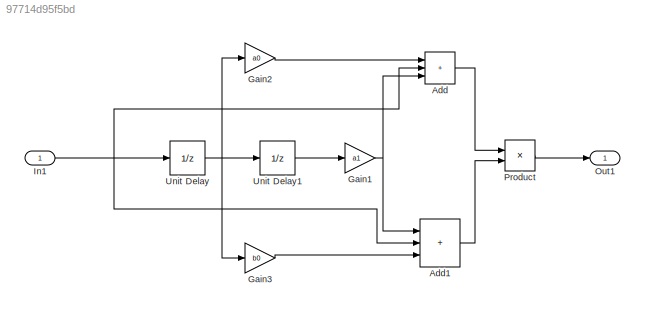
MODEL slx_97714d95f5bd
KIND model
CONFIG AbsTol = auto
CONFIG EnableMultiTasking = off
CONFIG FixedStep = auto
CONFIG MaxStep = auto
CONFIG MinStep = auto
CONFIG RelTol = 1e-3
CONFIG SampleTimeConstraint = Unconstrained
CONFIG SolverName = VariableStepAuto
CONFIG StartTime = 0.0
CONFIG StopTime = 10.0
WORKSPACE source: mxarray member
WORKSPACE a0 = 2
WORKSPACE a1 = -1
WORKSPACE b0 = 1
BLOCK [Sum] Add
  IconShape = rectangular
  Inputs = +++
  Ports = [3, 1]
BLOCK [Sum] Add1
  IconShape = rectangular
  Inputs = +++
  Ports = [3, 1]
BLOCK [Gain] Gain1
  Gain = a1
BLOCK [Gain] Gain2
  Gain = a0
BLOCK [Gain] Gain3
  Gain = b0
BLOCK [Inport] In1
  OutDataTypeStr = double
  PortDimensions = 1
  SampleTime = [0.20000000000000001,0]
  SamplingMode = Sample based
  SignalType = real
BLOCK [Outport] Out1
  OutDataTypeStr = double
  PortDimensions = 1
  SampleTime = [0.20000000000000001,0]
  SamplingMode = Sample based
  SignalType = real
BLOCK [Product] Product
  Ports = [2, 1]
BLOCK [UnitDelay] Unit Delay
  HasFrameUpgradeWarning = on
  SampleTime = -1
BLOCK [UnitDelay] Unit Delay1
  HasFrameUpgradeWarning = on
  SampleTime = -1
LINE Add1:1 -> Product:2
LINE Add:1 -> Product:1
NET Gain1:1 -> Add1:1, Add:3
LINE Gain2:1 -> Add:1
LINE Gain3:1 -> Add1:3
NET In1:1 -> Add1:2, Add:2, Unit Delay:1
LINE Product:1 -> Out1:1
LINE Unit Delay1:1 -> Gain1:1
NET Unit Delay:1 -> Gain2:1, Gain3:1, Unit Delay1:1
note: NET lines group one-source signal fan-out (src -> all destinations, sorted); 1:1 wires keep LINE
